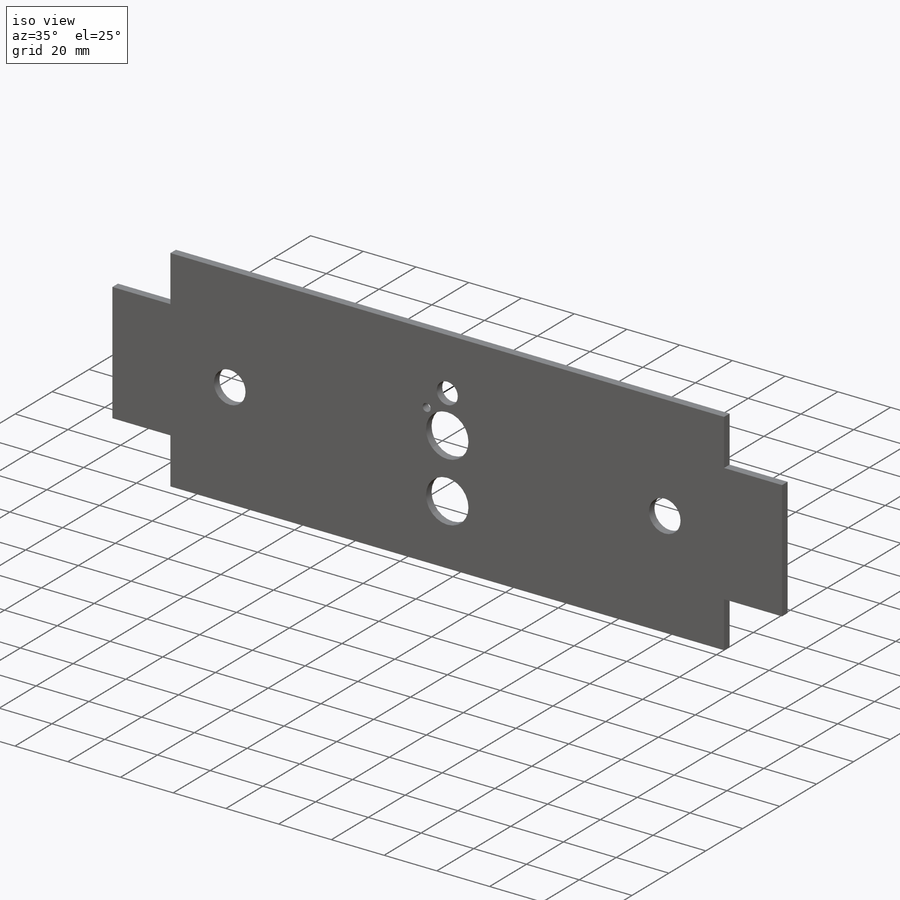
[diagram: iso view]
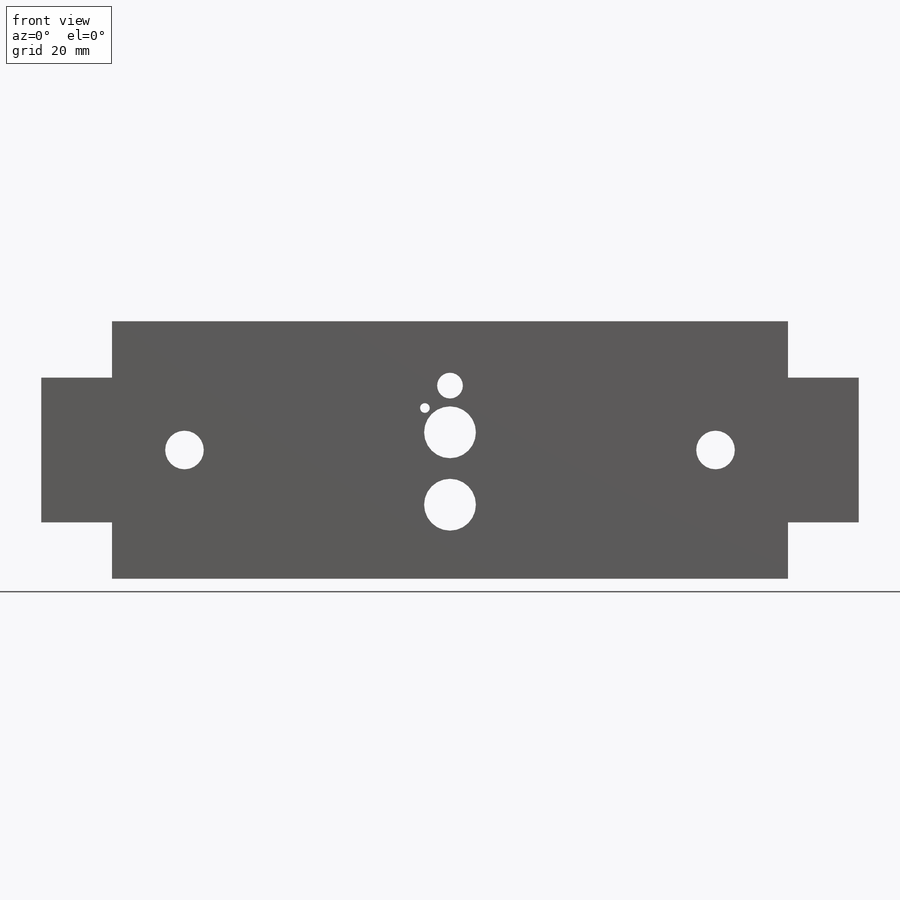
[diagram: front view]
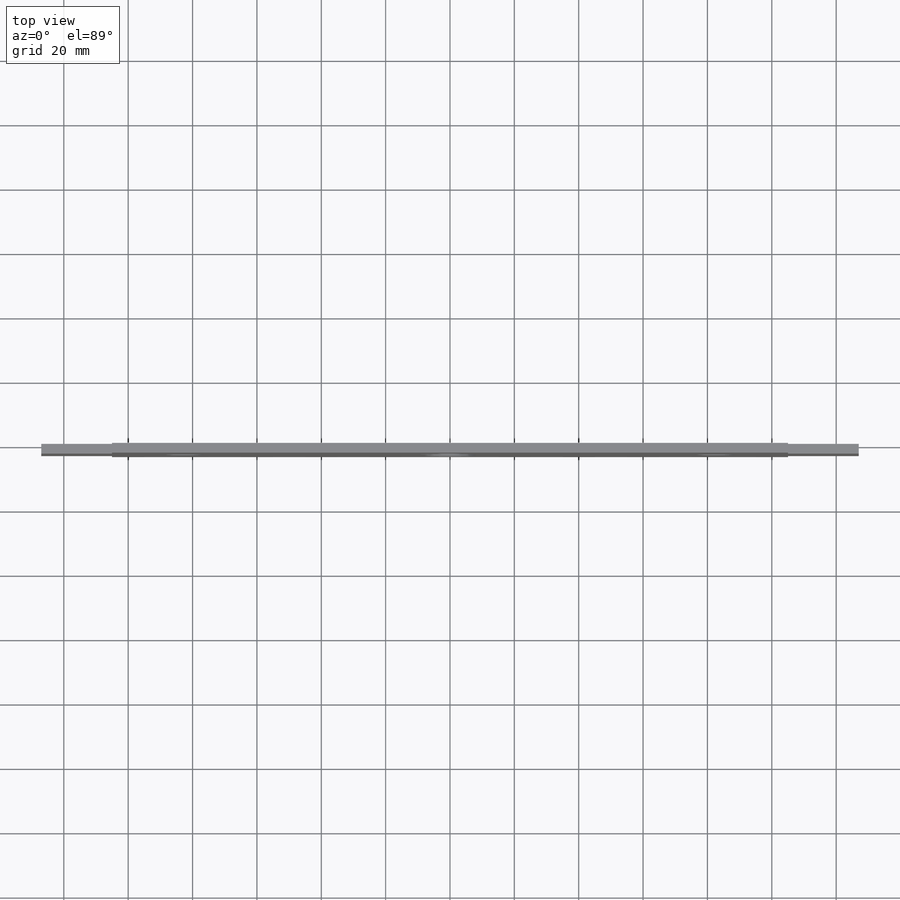
[diagram: top view]
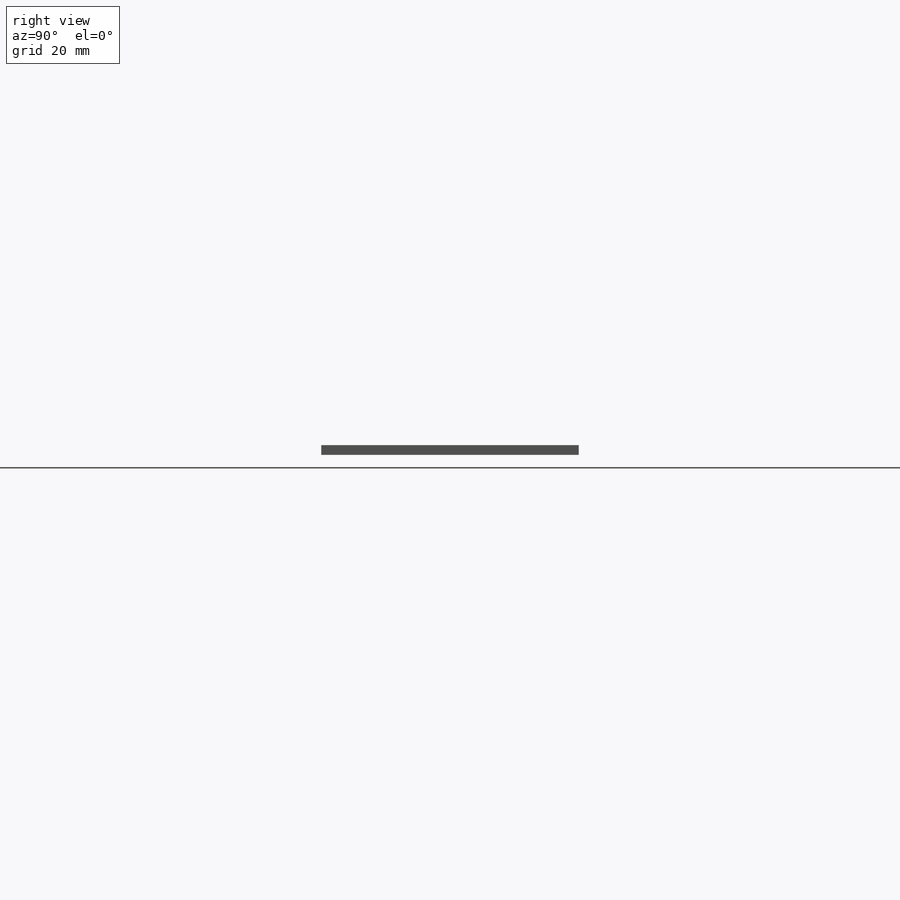
[diagram: right view]
SOLIDWORKS PART (.sldprt)
format: sldprt  version: not decoded by parser v0  size: 230,400 bytes
history: native  units: mm
features: sketch x6, plane x3, extrude x3, cut_extrude x3, material x1 (+13 scaffold rows collapsed)
feature tree (29):
  scaffold x13  (default folders/planes/origin — collapsed)
  material  "Material <sin especificar>"
  plane  "Alzado"
  plane  "Planta"
  plane  "Vista lateral"
  sketch  "Croquis1"  dims[D1=210.0mm D2=60.0mm D3=45.0mm D4=22.0mm D5=22.0mm D6=45.0mm]
  extrude  "Saliente-Extruir1"  Depth=3mm
  sketch  "Croquis2"  dims[D2=12.0mm D1=165.0mm]
  cut_extrude  "Cortar-Extruir1"  [1 undecoded]
  sketch  "Croquis3"  dims[D1=8.0mm D2=20.0mm]
  cut_extrude  "Cortar-Extruir2"  [1 undecoded]
  sketch  "Croquis4"  dims[D1=10.0mm]
  extrude  "Saliente-Extruir2"  [1 undecoded]
  sketch  "Croquis5"  dims[D1=10.0mm]
  extrude  "Saliente-Extruir3"  [1 undecoded]
  sketch  "Croquis6"  dims[D1=3.0mm D4=16.1mm D2=7.8mm D3=7.55mm D5=14.5mm D6=22.5mm]
  cut_extrude  "Cortar-Extruir3"  [1 undecoded]
decode coverage: 7 of 12 modeling features carry decoded parameters
note: 5 parameter values undecoded
summary: no parameter record found for 5 features
note: suppression state not decoded; provenance and decode notes live in map.json
